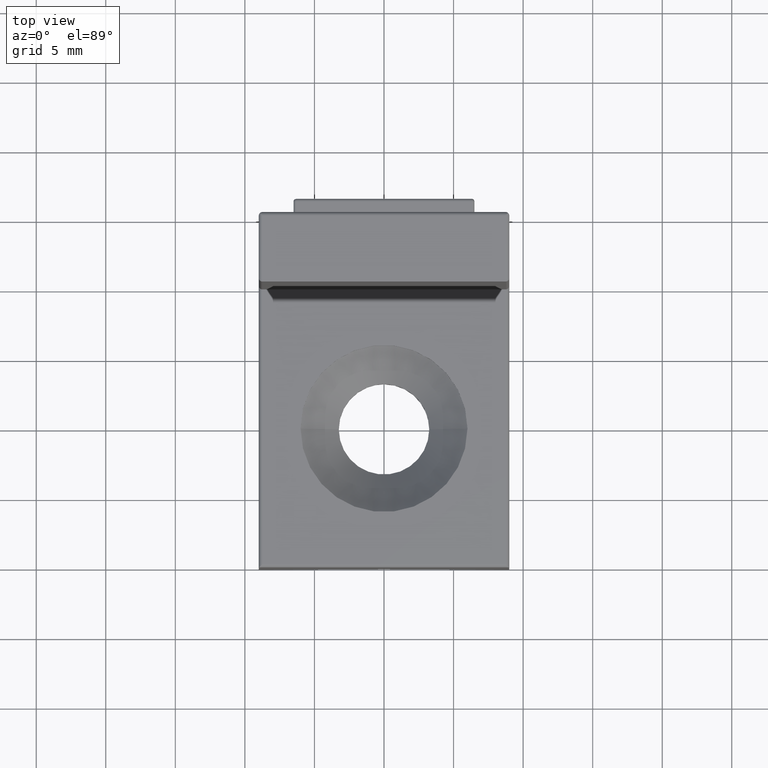
[diagram: clean part render]
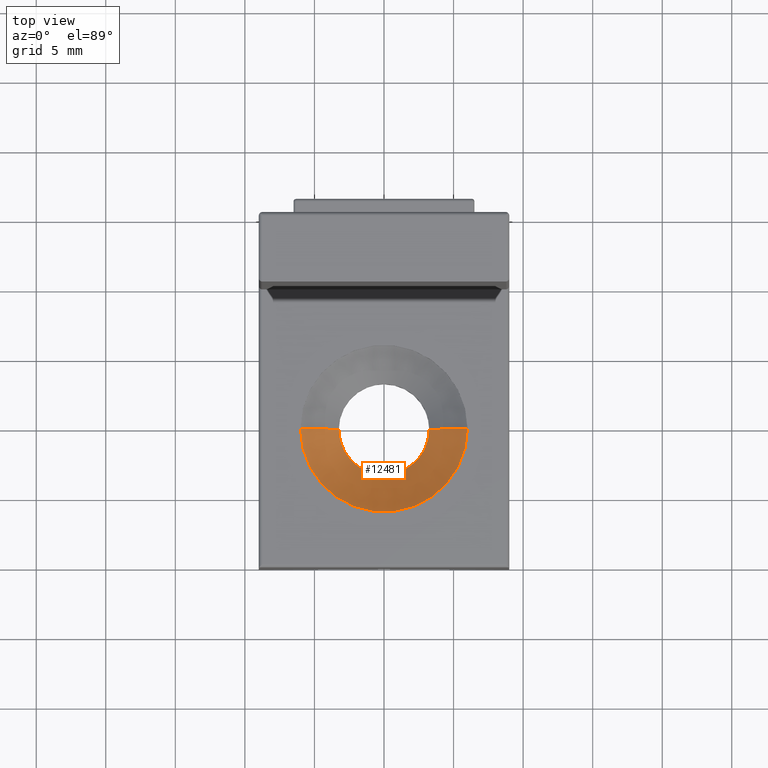
[diagram: same view with one face highlighted and labeled with its STEP entity id]
A machine part, top view. The second image highlights one B-rep face of the part: STEP entity #12481.
In plain terms, the highlighted conical surface has half-angle 45 deg.
Its self-contained STEP definition (entity closure, byte-faithful):
#193 = VECTOR ( 'NONE', #8674, 999.9999999999998900 ) ;
#832 = DIRECTION ( 'NONE',  ( -0.0000000000000000000, -0.0000000000000000000, 1.000000000000000000 ) ) ;
#2957 = CARTESIAN_POINT ( 'NONE',  ( -5.999999999999998200, -15.00000000000000000, 7.000000000000000900 ) ) ;
#3026 = DIRECTION ( 'NONE',  ( 1.000000000000000000, 0.0000000000000000000, 0.0000000000000000000 ) ) ;
#3081 = CARTESIAN_POINT ( 'NONE',  ( 1.836970198721029600E-015, -15.00000000000000000, 4.250000000000002700 ) ) ;
#3412 = ORIENTED_EDGE ( 'NONE', *, *, #5224, .F. ) ;
#4204 = DIRECTION ( 'NONE',  ( 1.000000000000000000, 0.0000000000000000000, 0.0000000000000000000 ) ) ;
#4908 = CONICAL_SURFACE ( 'NONE', #5796, 6.000000000000000000, 0.7853981633974485000 ) ;
#5224 = EDGE_CURVE ( 'NONE', #12085, #9292, #6017, .T. ) ;
#5796 = AXIS2_PLACEMENT_3D ( 'NONE', #13779, #9313, #12517 ) ;
#6017 = LINE ( 'NONE', #8623, #193 ) ;
#6512 = ORIENTED_EDGE ( 'NONE', *, *, #8199, .F. ) ;
#6702 = CIRCLE ( 'NONE', #7795, 6.000000000000000000 ) ;
#6898 = FACE_OUTER_BOUND ( 'NONE', #7027, .T. ) ;
#7027 = EDGE_LOOP ( 'NONE', ( #6512, #10607, #12791, #3412 ) ) ;
#7300 = CARTESIAN_POINT ( 'NONE',  ( 1.836970198721029600E-015, -15.00000000000000000, 7.000000000000000900 ) ) ;
#7530 = DIRECTION ( 'NONE',  ( -0.0000000000000000000, -0.0000000000000000000, 1.000000000000000000 ) ) ;
#7562 = LINE ( 'NONE', #8978, #12499 ) ;
#7648 = CARTESIAN_POINT ( 'NONE',  ( 6.000000000000001800, -15.00000000000000000, 7.000000000000000900 ) ) ;
#7795 = AXIS2_PLACEMENT_3D ( 'NONE', #7300, #7530, #3026 ) ;
#8082 = EDGE_CURVE ( 'NONE', #8926, #9292, #6702, .T. ) ;
#8094 = CIRCLE ( 'NONE', #9517, 3.250000000000000900 ) ;
#8199 = EDGE_CURVE ( 'NONE', #10639, #12085, #8094, .T. ) ;
#8372 = CARTESIAN_POINT ( 'NONE',  ( 3.250000000000002700, -15.00000000000000000, 4.250000000000002700 ) ) ;
#8623 = CARTESIAN_POINT ( 'NONE',  ( 6.000000000000001800, -15.00000000000000000, 7.000000000000000900 ) ) ;
#8674 = DIRECTION ( 'NONE',  ( 0.7071067811865477900, 0.0000000000000000000, 0.7071067811865473500 ) ) ;
#8892 = DIRECTION ( 'NONE',  ( -0.7071067811865477900, 8.659560562354936600E-017, 0.7071067811865473500 ) ) ;
#8900 = CARTESIAN_POINT ( 'NONE',  ( -3.249999999999999100, -15.00000000000000000, 4.250000000000002700 ) ) ;
#8926 = VERTEX_POINT ( 'NONE', #2957 ) ;
#8950 = EDGE_CURVE ( 'NONE', #10639, #8926, #7562, .T. ) ;
#8978 = CARTESIAN_POINT ( 'NONE',  ( -5.999999999999998200, -15.00000000000000000, 7.000000000000000900 ) ) ;
#9292 = VERTEX_POINT ( 'NONE', #7648 ) ;
#9313 = DIRECTION ( 'NONE',  ( -0.0000000000000000000, -0.0000000000000000000, 1.000000000000000000 ) ) ;
#9517 = AXIS2_PLACEMENT_3D ( 'NONE', #3081, #832, #4204 ) ;
#10607 = ORIENTED_EDGE ( 'NONE', *, *, #8950, .T. ) ;
#10639 = VERTEX_POINT ( 'NONE', #8900 ) ;
#12085 = VERTEX_POINT ( 'NONE', #8372 ) ;
#12481 = ADVANCED_FACE ( 'NONE', ( #6898 ), #4908, .F. ) ;
#12499 = VECTOR ( 'NONE', #8892, 999.9999999999998900 ) ;
#12517 = DIRECTION ( 'NONE',  ( 1.000000000000000000, 0.0000000000000000000, 0.0000000000000000000 ) ) ;
#12791 = ORIENTED_EDGE ( 'NONE', *, *, #8082, .T. ) ;
#13779 = CARTESIAN_POINT ( 'NONE',  ( 1.836970198721029600E-015, -15.00000000000000000, 7.000000000000000900 ) ) ;